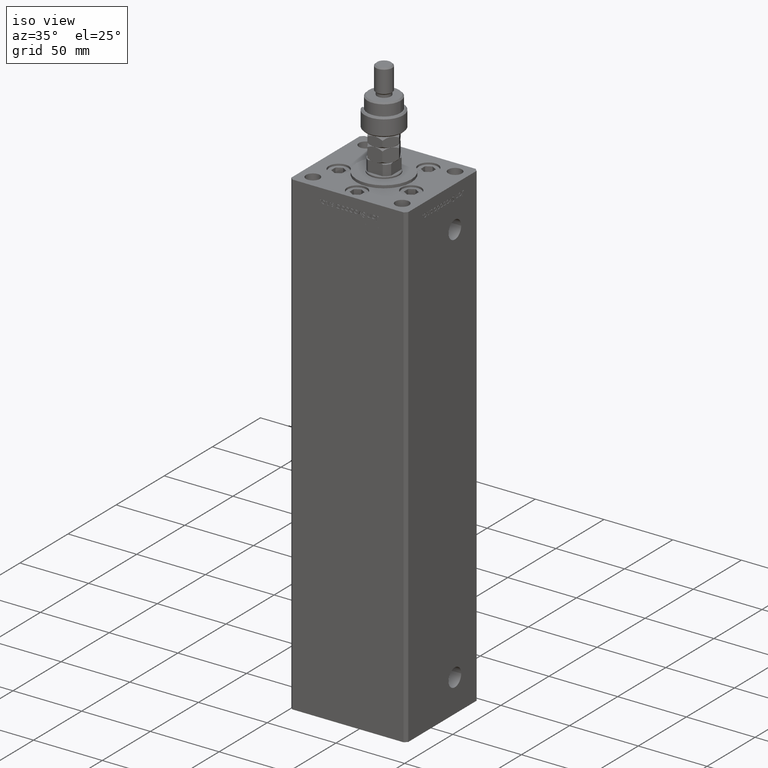
[diagram: clean part render]
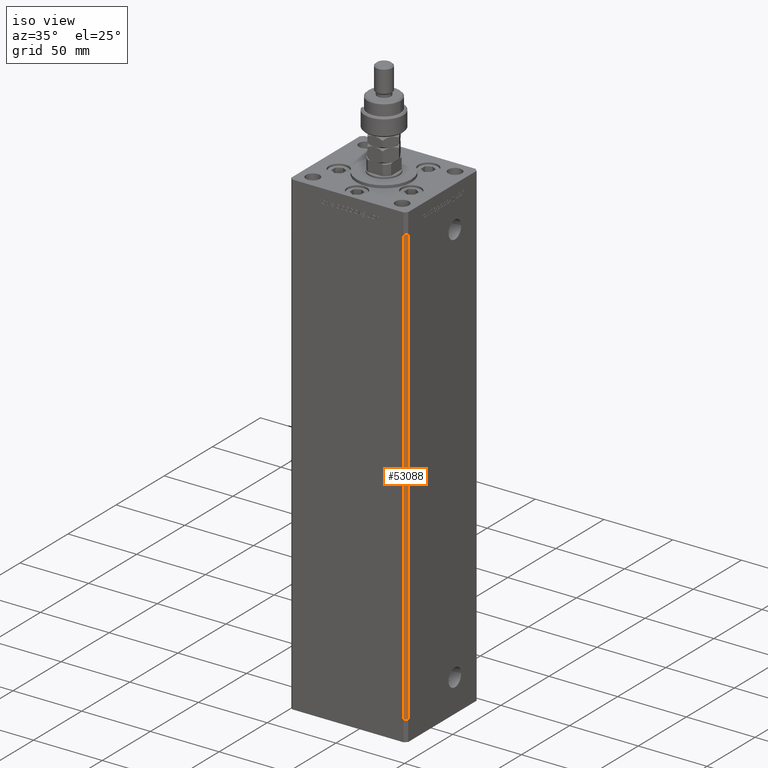
[diagram: same view with one face highlighted and labeled with its STEP entity id]
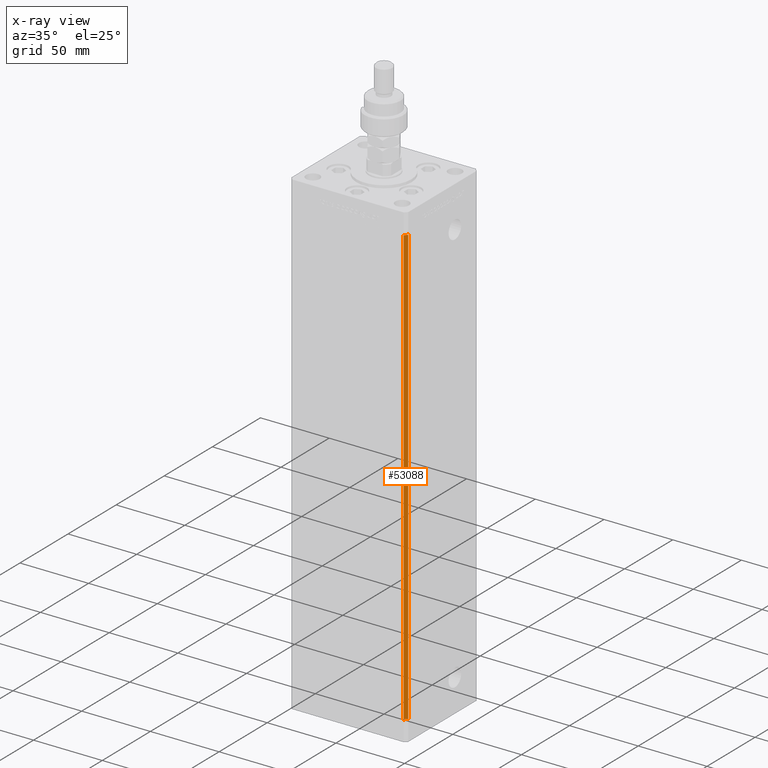
[diagram: x-ray of the same camera — body ghosted, the highlighted face saturated]
A machine part, iso view. The second image highlights one B-rep face of the part: STEP entity #53088.
The next image is the same camera in x-ray: the body ghosted, the highlighted face saturated — about 0% of this face is hidden behind the body in this view.
In plain terms, the highlighted planar face has unit normal (0.7071, -0.7071, 0).
Its self-contained STEP definition (entity closure, byte-faithful):
#404 = VECTOR ( 'NONE', #5658, 1000.000000000000114 ) ;
#1291 = CARTESIAN_POINT ( 'NONE',  ( 40.49999999999998579, -37.50000000000000711, 0.000000000000000000 ) ) ;
#1504 = FACE_OUTER_BOUND ( 'NONE', #27734, .T. ) ;
#1588 = CARTESIAN_POINT ( 'NONE',  ( 40.49999999999998579, -37.50000000000000711, 318.5000000000000000 ) ) ;
#3726 = VECTOR ( 'NONE', #26259, 1000.000000000000000 ) ;
#3784 = EDGE_CURVE ( 'NONE', #10919, #15103, #36484, .T. ) ;
#4428 = CARTESIAN_POINT ( 'NONE',  ( 42.49999999999998579, -35.50000000000000711, 0.000000000000000000 ) ) ;
#5331 = VERTEX_POINT ( 'NONE', #31506 ) ;
#5658 = DIRECTION ( 'NONE',  ( -0.7071067811865474617, -0.7071067811865474617, 0.000000000000000000 ) ) ;
#8493 = AXIS2_PLACEMENT_3D ( 'NONE', #14262, #47934, #52114 ) ;
#8882 = ORIENTED_EDGE ( 'NONE', *, *, #3784, .F. ) ;
#10373 = CARTESIAN_POINT ( 'NONE',  ( 42.49999999999998579, -35.50000000000000711, 0.000000000000000000 ) ) ;
#10919 = VERTEX_POINT ( 'NONE', #4428 ) ;
#13723 = PLANE ( 'NONE',  #8493 ) ;
#13863 = CARTESIAN_POINT ( 'NONE',  ( 40.49999999999998579, -37.50000000000000711, 318.5000000000000000 ) ) ;
#14262 = CARTESIAN_POINT ( 'NONE',  ( 42.49999999999998579, -35.50000000000000711, 318.5000000000000000 ) ) ;
#15103 = VERTEX_POINT ( 'NONE', #1291 ) ;
#18714 = LINE ( 'NONE', #43756, #404 ) ;
#19559 = ORIENTED_EDGE ( 'NONE', *, *, #31350, .T. ) ;
#26259 = DIRECTION ( 'NONE',  ( -0.000000000000000000, -0.000000000000000000, -1.000000000000000000 ) ) ;
#26987 = EDGE_CURVE ( 'NONE', #5331, #10919, #51571, .T. ) ;
#27734 = EDGE_LOOP ( 'NONE', ( #8882, #54493, #31370, #19559 ) ) ;
#27963 = LINE ( 'NONE', #1588, #48284 ) ;
#29376 = VECTOR ( 'NONE', #40674, 1000.000000000000114 ) ;
#30419 = CARTESIAN_POINT ( 'NONE',  ( 42.49999999999998579, -35.50000000000000711, 318.5000000000000000 ) ) ;
#31350 = EDGE_CURVE ( 'NONE', #41321, #15103, #27963, .T. ) ;
#31370 = ORIENTED_EDGE ( 'NONE', *, *, #48594, .T. ) ;
#31506 = CARTESIAN_POINT ( 'NONE',  ( 42.49999999999998579, -35.50000000000000711, 318.5000000000000000 ) ) ;
#36037 = DIRECTION ( 'NONE',  ( -0.000000000000000000, -0.000000000000000000, -1.000000000000000000 ) ) ;
#36484 = LINE ( 'NONE', #10373, #29376 ) ;
#40674 = DIRECTION ( 'NONE',  ( -0.7071067811865474617, -0.7071067811865474617, 0.000000000000000000 ) ) ;
#41321 = VERTEX_POINT ( 'NONE', #13863 ) ;
#43756 = CARTESIAN_POINT ( 'NONE',  ( 42.49999999999998579, -35.50000000000000711, 318.5000000000000000 ) ) ;
#47934 = DIRECTION ( 'NONE',  ( 0.7071067811865475727, -0.7071067811865475727, 0.000000000000000000 ) ) ;
#48284 = VECTOR ( 'NONE', #36037, 1000.000000000000000 ) ;
#48594 = EDGE_CURVE ( 'NONE', #5331, #41321, #18714, .T. ) ;
#51571 = LINE ( 'NONE', #30419, #3726 ) ;
#52114 = DIRECTION ( 'NONE',  ( 0.7071067811865474617, 0.7071067811865474617, 0.000000000000000000 ) ) ;
#53088 = ADVANCED_FACE ( 'NONE', ( #1504 ), #13723, .T. ) ;
#54493 = ORIENTED_EDGE ( 'NONE', *, *, #26987, .F. ) ;